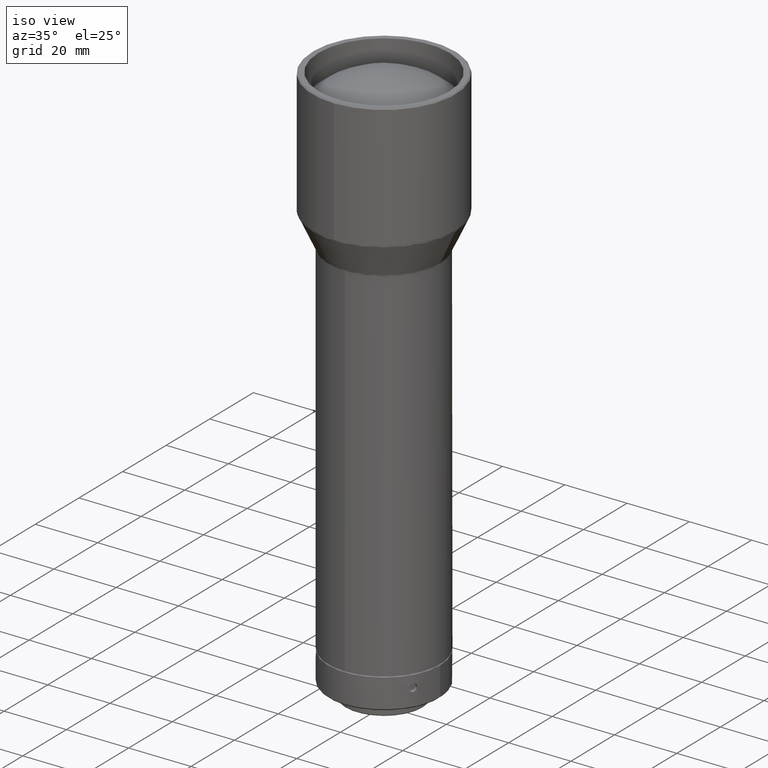
[diagram: clean part render]
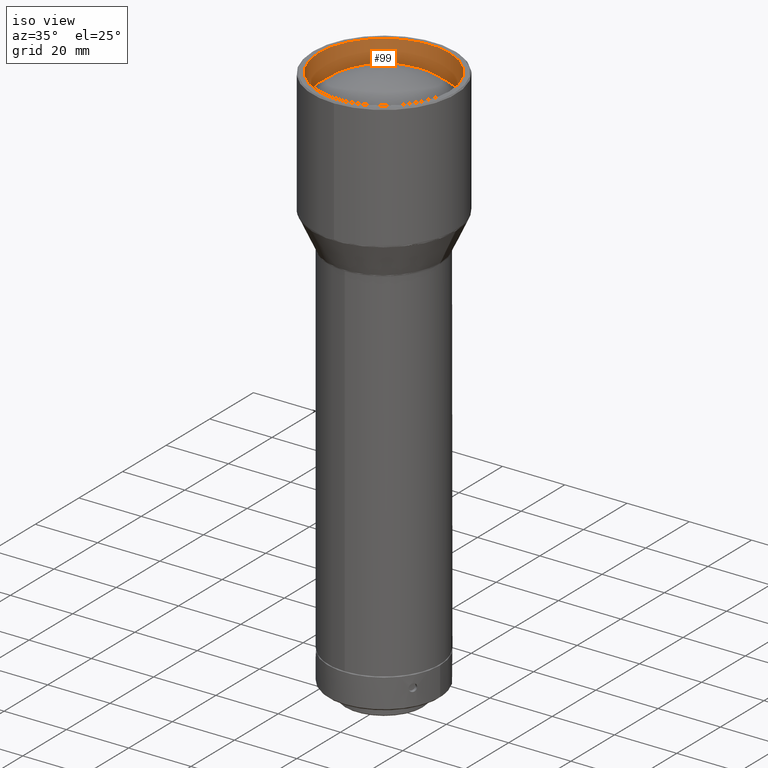
[diagram: same view with one face highlighted and labeled with its STEP entity id]
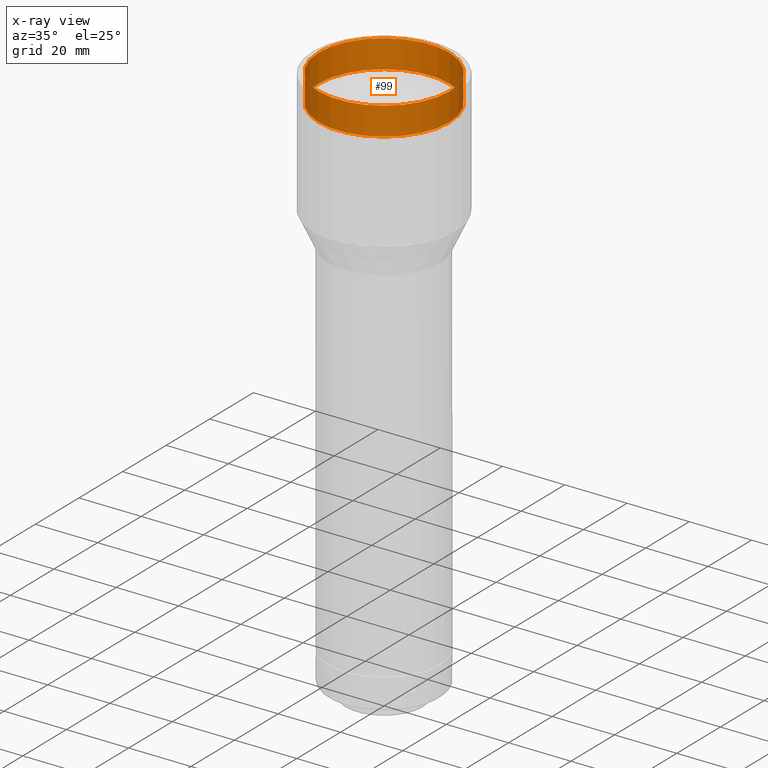
[diagram: x-ray of the same camera — body ghosted, the highlighted face saturated]
A machine part, iso view. The second image highlights one B-rep face of the part: STEP entity #99.
The next image is the same camera in x-ray: the body ghosted, the highlighted face saturated — about 0% of this face is hidden behind the body in this view.
In plain terms, the highlighted cylindrical surface (bore or boss wall) has radius 21 mm, axis along (-0, -0, 1).
Its self-contained STEP definition (entity closure, byte-faithful):
#90 = CARTESIAN_POINT ( 'NONE',  ( -1.181967344874662072E-14, -8.273863282956648413E-15, -742.0000000000000000 ) ) ;
#99 = ADVANCED_FACE ( 'NONE', ( #544, #294 ), #162, .F. ) ;
#162 = CYLINDRICAL_SURFACE ( 'NONE', #405, 21.00000000000000355 ) ;
#233 = DIRECTION ( 'NONE',  ( -0.000000000000000000, -0.000000000000000000, 1.000000000000000000 ) ) ;
#255 = DIRECTION ( 'NONE',  ( 1.000000000000000000, 0.000000000000000000, 0.000000000000000000 ) ) ;
#294 = FACE_OUTER_BOUND ( 'NONE', #737, .T. ) ;
#328 = VERTEX_POINT ( 'NONE', #785 ) ;
#364 = AXIS2_PLACEMENT_3D ( 'NONE', #821, #763, #255 ) ;
#378 = CARTESIAN_POINT ( 'NONE',  ( -1.181967344874662072E-14, -8.273863282956648413E-15, -733.0000000000000000 ) ) ;
#384 = DIRECTION ( 'NONE',  ( 0.000000000000000000, 0.000000000000000000, 1.000000000000000000 ) ) ;
#405 = AXIS2_PLACEMENT_3D ( 'NONE', #90, #233, #663 ) ;
#482 = ORIENTED_EDGE ( 'NONE', *, *, #816, .F. ) ;
#521 = CIRCLE ( 'NONE', #735, 21.00000000000000355 ) ;
#524 = VERTEX_POINT ( 'NONE', #640 ) ;
#544 = FACE_OUTER_BOUND ( 'NONE', #635, .T. ) ;
#624 = DIRECTION ( 'NONE',  ( 1.000000000000000000, 0.000000000000000000, 0.000000000000000000 ) ) ;
#635 = EDGE_LOOP ( 'NONE', ( #482 ) ) ;
#640 = CARTESIAN_POINT ( 'NONE',  ( 20.99999999999999289, -8.273863282956648413E-15, -733.0000000000000000 ) ) ;
#663 = DIRECTION ( 'NONE',  ( 1.000000000000000000, 0.000000000000000000, 0.000000000000000000 ) ) ;
#735 = AXIS2_PLACEMENT_3D ( 'NONE', #378, #384, #624 ) ;
#737 = EDGE_LOOP ( 'NONE', ( #761 ) ) ;
#761 = ORIENTED_EDGE ( 'NONE', *, *, #787, .T. ) ;
#763 = DIRECTION ( 'NONE',  ( 0.000000000000000000, 0.000000000000000000, 1.000000000000000000 ) ) ;
#764 = CIRCLE ( 'NONE', #364, 21.00000000000000355 ) ;
#785 = CARTESIAN_POINT ( 'NONE',  ( 20.99999999999999289, -8.273863282956648413E-15, -742.0000000000000000 ) ) ;
#787 = EDGE_CURVE ( 'NONE', #524, #524, #521, .T. ) ;
#816 = EDGE_CURVE ( 'NONE', #328, #328, #764, .T. ) ;
#821 = CARTESIAN_POINT ( 'NONE',  ( -1.181967344874662072E-14, -8.273863282956648413E-15, -742.0000000000000000 ) ) ;